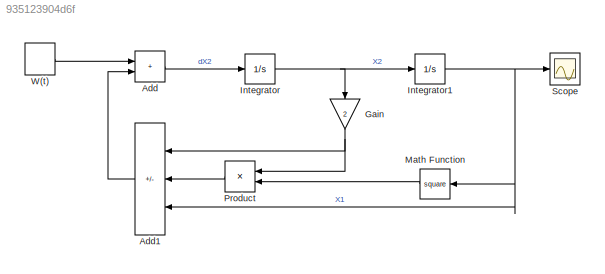
MODEL slx_935123904d6f
KIND model
CONFIG AbsTol = auto
CONFIG EnableMultiTasking = off
CONFIG FixedStep = auto
CONFIG MaxStep = auto
CONFIG MinStep = auto
CONFIG RelTol = 1e-3
CONFIG SampleTimeConstraint = Unconstrained
CONFIG SolverName = VariableStepAuto
CONFIG StartTime = 0.0
CONFIG StopTime = 30
BLOCK [Sum] Add
  IconShape = rectangular
BLOCK [Sum] Add1
  IconShape = rectangular
  Inputs = +--
  NameLocation = top
BLOCK [Gain] Gain
  Gain = 2
  NameLocation = left
BLOCK [Integrator] Integrator
  InitialCondition = 2
BLOCK [Integrator] Integrator1
  InitialCondition = -2
BLOCK [Math] Math Function
  NameLocation = top
  Operator = square
BLOCK [Product] Product
  NameLocation = top
BLOCK [Scope] Scope
  Floating = off
  NumInputPorts = 1
  ScopeSpecificationString = Simulink.scopes.TimeScopeBlockCfg('CurrentConfiguration', extmgr.ConfigurationSet(extmgr.Configuration('Core','General UI',true),extmgr.Configuration('Core','Source UI',true),extmgr.Configuration('Sources','WiredSimulink',true),extmgr.Configuration('Visuals','Time Domain',true,'SerializedDisplays',{struct('MinYLimReal','-2.53573','MaxYLimReal','2.54998','YLabelReal','','MinYLimMag','0.00000','MaxY...<+1488ch>
BLOCK [DiscretePulseGenerator] W(t)
  Amplitude = 10
  Period = 10
  PulseType = Time based
  PulseWidth = .25
LINE Add1:1 -> Add:2
LINE Add:1 -> Integrator:1
NET Gain:1 -> Add1:1, Product:1
NET Integrator1:1 -> Add1:3, Math Function:1, Scope:1
NET Integrator:1 -> Gain:1, Integrator1:1
LINE Math Function:1 -> Product:2
LINE Product:1 -> Add1:2
LINE W(t):1 -> Add:1
note: NET lines group one-source signal fan-out (src -> all destinations, sorted); 1:1 wires keep LINE
